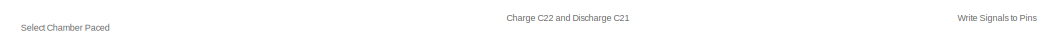
[diagram: root canvas - part 1/3, top center region]
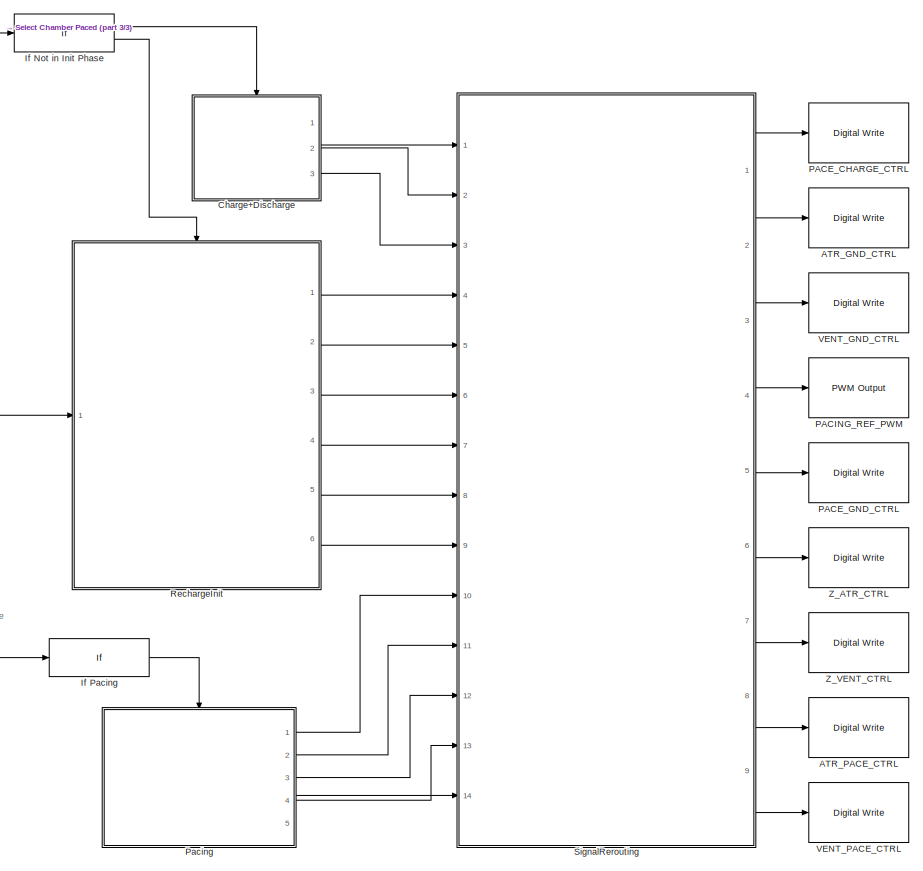
[diagram: root canvas - part 2/3, right side, full height]
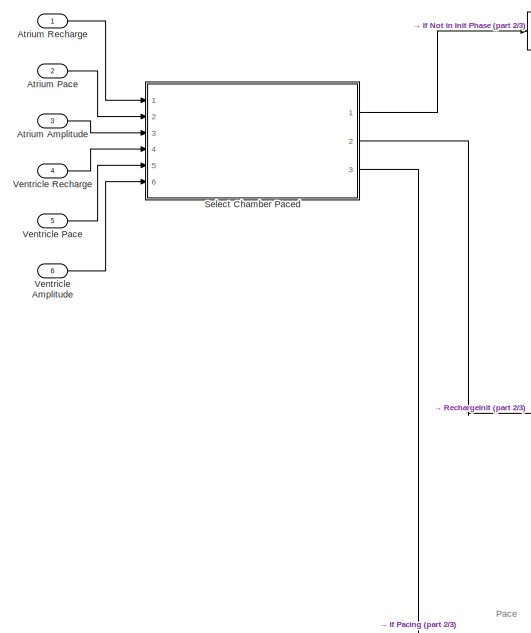
[diagram: root canvas - part 3/3, middle left region]
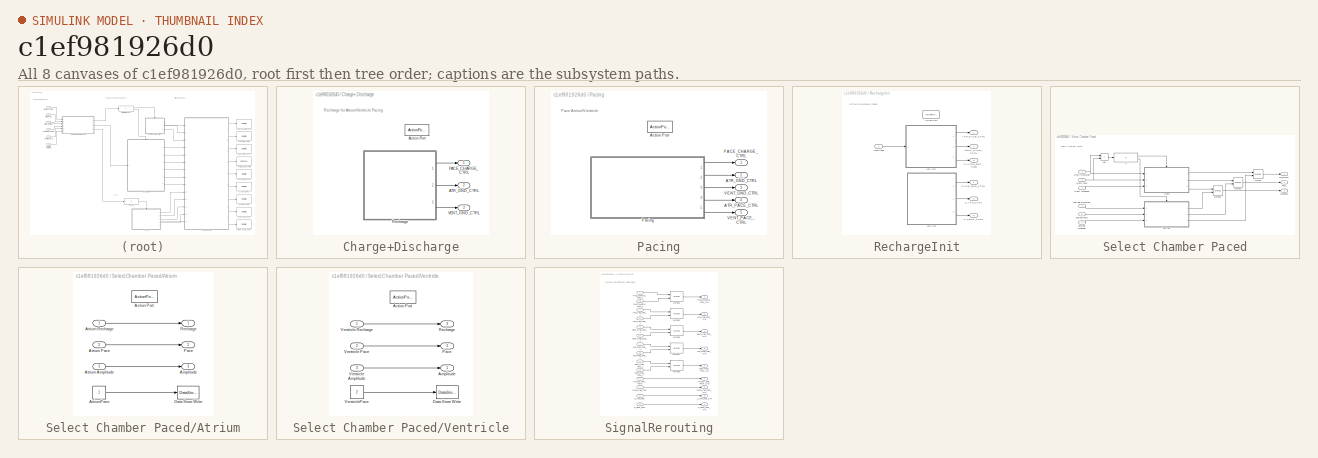
[diagram: thumbnail index - all 8 canvases of the model, root first then tree order]
MODEL slx_c1ef981926d0
KIND model
CONFIG AbsTol = auto
CONFIG EnableMultiTasking = on
CONFIG FixedStep = 1e-3
CONFIG MaxStep = auto
CONFIG MinStep = auto
CONFIG RelTol = 1e-3
CONFIG SampleTimeConstraint = Unconstrained
CONFIG Solver = FixedStepAuto
CONFIG SolverName = FixedStepAuto
CONFIG StartTime = 0.0
CONFIG StopTime = 10.0
BLOCK [Inport]  Atrium Amplitude
  OutDataTypeStr = single
  Port = 3
  Unit = V
BLOCK [Inport]  Ventricle Amplitude
  OutDataTypeStr = single
  Port = 6
  Unit = V
BLOCK [Reference] ATR_GND_CTRL  REF=frdmk64flib/Digital Write
  Ports = [1]
  Priority = 2
  SourceBlock = frdmk64flib/Digital Write
  SourceProductBaseCode = EC_FRDM_K64F
  SourceType = freedomk64f.DigitalWrite
BLOCK [Reference] ATR_PACE_CTRL  REF=frdmk64flib/Digital Write
  Ports = [1]
  Priority = 4
  SourceBlock = frdmk64flib/Digital Write
  SourceProductBaseCode = EC_FRDM_K64F
  SourceType = freedomk64f.DigitalWrite
BLOCK [Inport] Atrium Pace
  OutDataTypeStr = boolean
  Port = 2
BLOCK [Inport] Atrium Recharge
  OutDataTypeStr = double
BLOCK [SubSystem] Charge+Discharge
  Ports = [0, 3, 0, 0, 0, 0, 0, 1]
  RequestExecContextInheritance = off
  TreatAsAtomicUnit = on
BLOCK [Outport] Charge+Discharge/ATR_GND_CTRL
  Port = 2
BLOCK [ActionPort] Charge+Discharge/Action Port
  ActionPortLabel = if(u1==2)
BLOCK [Outport] Charge+Discharge/PACE_CHARGE_CTRL
BLOCK [ModelReference] Charge+Discharge/Recharge
  ModelNameDialog = Recharge.slx
  ModelReferenceVersion = 1.4
  Ports = [0, 3]
BLOCK [Outport] Charge+Discharge/VENT_GND_CTRL
  Port = 3
BLOCK [If] If Not in Init Phase
  ElseIfExpressions = u1
  IfExpression = u1==2
  Ports = [1, 2]
  ShowElse = off
BLOCK [If] If Pacing
  IfExpression = u1
  Ports = [1, 1]
  ShowElse = off
BLOCK [Reference] PACE_CHARGE_CTRL  REF=frdmk64flib/Digital Write
  Ports = [1]
  Priority = 1
  SourceBlock = frdmk64flib/Digital Write
  SourceProductBaseCode = EC_FRDM_K64F
  SourceType = freedomk64f.DigitalWrite
BLOCK [Reference] PACE_GND_CTRL  REF=frdmk64flib/Digital Write
  Ports = [1]
  Priority = 3
  SourceBlock = frdmk64flib/Digital Write
  SourceProductBaseCode = EC_FRDM_K64F
  SourceType = freedomk64f.DigitalWrite
BLOCK [Reference] PACING_REF_PWM  REF=frdmk64flib/PWM Output
  Ports = [1]
  Priority = 3
  SourceBlock = frdmk64flib/PWM Output
  SourceProductBaseCode = EC_FRDM_K64F
  SourceType = freedomk64f.PWMOutput
BLOCK [SubSystem] Pacing
  Ports = [0, 5, 0, 0, 0, 0, 0, 1]
  RequestExecContextInheritance = off
  TreatAsAtomicUnit = on
BLOCK [Outport] Pacing/ATR_GND_CTRL
  Port = 2
BLOCK [Outport] Pacing/ATR_PACE_CTRL
  Port = 4
BLOCK [ActionPort] Pacing/Action Port
  ActionPortLabel = if(u1)
BLOCK [Outport] Pacing/PACE_CHARGE_CTRL
BLOCK [ModelReference] Pacing/Pacing
  ModelNameDialog = Pacing.slx
  ModelReferenceVersion = 1.10
  Ports = [0, 5]
BLOCK [Outport] Pacing/VENT_GND_CTRL
  Port = 3
BLOCK [Outport] Pacing/VENT_PACE_CTRL
  Port = 5
BLOCK [SubSystem] RechargeInit
  Ports = [1, 6, 0, 0, 0, 0, 0, 1]
  RequestExecContextInheritance = off
  TreatAsAtomicUnit = on
BLOCK [Outport] RechargeInit/ATR_PACE_CTRL
BLOCK [ActionPort] RechargeInit/Action Port
  ActionPortLabel = elseif(u1)
BLOCK [Inport] RechargeInit/Amplitude
BLOCK [ModelReference] RechargeInit/Init C21
  ModelNameDialog = InitC21.slx
  ModelReferenceVersion = 1.8
  Ports = [0, 3]
BLOCK [ModelReference] RechargeInit/Init C22
  ModelNameDialog = InitC22.slx
  ModelReferenceVersion = 1.19
  Ports = [1, 3]
BLOCK [Outport] RechargeInit/PACE_GND_CTRL
  Port = 4
BLOCK [Outport] RechargeInit/PACING_REF_PWM
  Port = 3
BLOCK [Outport] RechargeInit/VENT_PACE_CTRL
  Port = 2
BLOCK [Outport] RechargeInit/Z_ATR_CTRL
  Port = 5
BLOCK [Outport] RechargeInit/Z_VENT_CTRL
  Port = 6
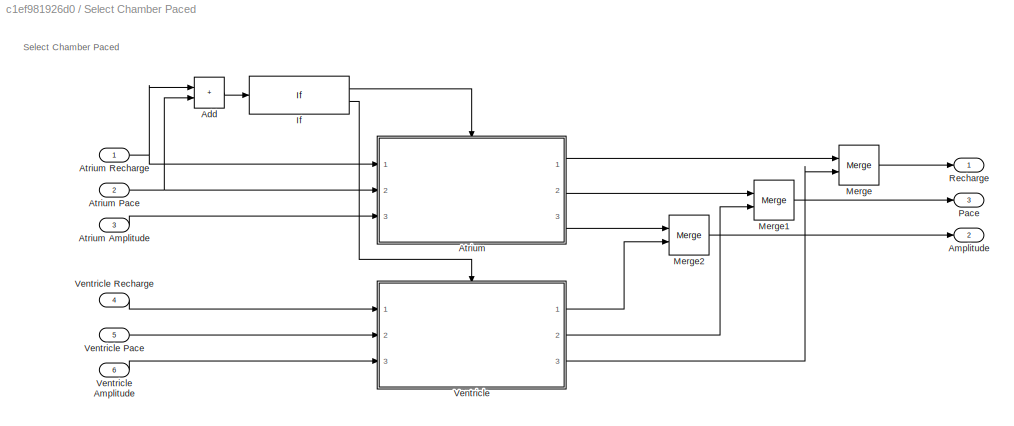
BLOCK [SubSystem] Select Chamber Paced
  Ports = [6, 3]
  RequestExecContextInheritance = off
BLOCK [Inport] Select Chamber Paced/ Atrium Amplitude
  Port = 3
BLOCK [Inport] Select Chamber Paced/ Ventricle Amplitude
  Port = 6
BLOCK [Sum] Select Chamber Paced/Add
  IconShape = rectangular
  Ports = [2, 1]
BLOCK [Outport] Select Chamber Paced/Amplitude
  OutDataTypeStr = single
  Port = 2
BLOCK [SubSystem] Select Chamber Paced/Atrium
  Ports = [3, 3, 0, 0, 0, 0, 0, 1]
  RequestExecContextInheritance = off
  TreatAsAtomicUnit = on
BLOCK [Inport] Select Chamber Paced/Atrium Pace
  Port = 2
BLOCK [Inport] Select Chamber Paced/Atrium Recharge
BLOCK [Inport] Select Chamber Paced/Atrium/ Atrium Amplitude
  Port = 3
  Unit = V
BLOCK [ActionPort] Select Chamber Paced/Atrium/Action Port
  ActionPortLabel = if(u1)
BLOCK [Outport] Select Chamber Paced/Atrium/Amplitude
  Port = 3
BLOCK [Inport] Select Chamber Paced/Atrium/Atrium Pace
  OutDataTypeStr = boolean
  Port = 2
BLOCK [Inport] Select Chamber Paced/Atrium/Atrium Recharge
BLOCK [Constant] Select Chamber Paced/Atrium/AtriumPace
  OutDataTypeStr = uint8
BLOCK [DataStoreWrite] Select Chamber Paced/Atrium/Data Store Write
  DataStoreName = Chamber
  Ports = [1]
BLOCK [Outport] Select Chamber Paced/Atrium/Pace
  Port = 2
BLOCK [Outport] Select Chamber Paced/Atrium/Recharge
BLOCK [If] Select Chamber Paced/If
  IfExpression = u1
  Ports = [1, 2]
BLOCK [Merge] Select Chamber Paced/Merge
  Ports = [2, 1]
BLOCK [Merge] Select Chamber Paced/Merge1
  Ports = [2, 1]
BLOCK [Merge] Select Chamber Paced/Merge2
  Ports = [2, 1]
BLOCK [Outport] Select Chamber Paced/Pace
  Port = 3
BLOCK [Outport] Select Chamber Paced/Recharge
BLOCK [SubSystem] Select Chamber Paced/Ventricle
  Ports = [3, 3, 0, 0, 0, 0, 0, 1]
  RequestExecContextInheritance = off
  TreatAsAtomicUnit = on
BLOCK [Inport] Select Chamber Paced/Ventricle Pace
  Port = 5
BLOCK [Inport] Select Chamber Paced/Ventricle Recharge
  Port = 4
BLOCK [Inport] Select Chamber Paced/Ventricle/ Ventricle Amplitude
  Port = 3
  Unit = V
BLOCK [ActionPort] Select Chamber Paced/Ventricle/Action Port
  ActionPortLabel = else
BLOCK [Outport] Select Chamber Paced/Ventricle/Amplitude
BLOCK [DataStoreWrite] Select Chamber Paced/Ventricle/Data Store Write
  DataStoreName = Chamber
  Ports = [1]
BLOCK [Outport] Select Chamber Paced/Ventricle/Pace
  Port = 2
BLOCK [Outport] Select Chamber Paced/Ventricle/Recharge
  Port = 3
BLOCK [Inport] Select Chamber Paced/Ventricle/Ventricle Pace
  OutDataTypeStr = boolean
  Port = 2
BLOCK [Inport] Select Chamber Paced/Ventricle/Ventricle Recharge
BLOCK [Constant] Select Chamber Paced/Ventricle/VentriclePace
  OutDataTypeStr = uint8
  Value = 2
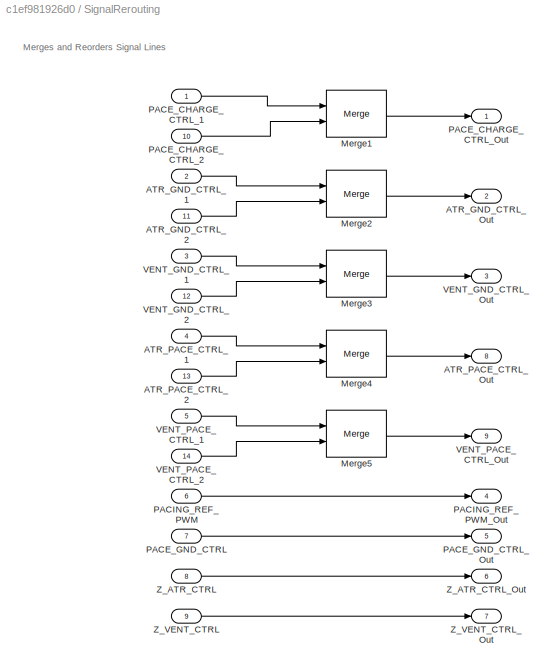
BLOCK [SubSystem] SignalRerouting
  Ports = [14, 9]
  RequestExecContextInheritance = off
BLOCK [Inport] SignalRerouting/ATR_GND_CTRL_1
  Port = 2
BLOCK [Inport] SignalRerouting/ATR_GND_CTRL_2
  Port = 11
BLOCK [Outport] SignalRerouting/ATR_GND_CTRL_Out
  Port = 2
BLOCK [Inport] SignalRerouting/ATR_PACE_CTRL_1
  Port = 4
BLOCK [Inport] SignalRerouting/ATR_PACE_CTRL_2
  Port = 13
BLOCK [Outport] SignalRerouting/ATR_PACE_CTRL_Out
  Port = 8
BLOCK [Merge] SignalRerouting/Merge1
  Ports = [2, 1]
BLOCK [Merge] SignalRerouting/Merge2
  Ports = [2, 1]
BLOCK [Merge] SignalRerouting/Merge3
  Ports = [2, 1]
BLOCK [Merge] SignalRerouting/Merge4
  Ports = [2, 1]
BLOCK [Merge] SignalRerouting/Merge5
  Ports = [2, 1]
BLOCK [Inport] SignalRerouting/PACE_CHARGE_CTRL_1
BLOCK [Inport] SignalRerouting/PACE_CHARGE_CTRL_2
  Port = 10
BLOCK [Outport] SignalRerouting/PACE_CHARGE_CTRL_Out
BLOCK [Inport] SignalRerouting/PACE_GND_CTRL
  Port = 7
BLOCK [Outport] SignalRerouting/PACE_GND_CTRL_Out
  Port = 5
BLOCK [Inport] SignalRerouting/PACING_REF_PWM
  Port = 6
BLOCK [Outport] SignalRerouting/PACING_REF_PWM_Out
  Port = 4
BLOCK [Inport] SignalRerouting/VENT_GND_CTRL_1
  Port = 3
BLOCK [Inport] SignalRerouting/VENT_GND_CTRL_2
  Port = 12
BLOCK [Outport] SignalRerouting/VENT_GND_CTRL_Out
  Port = 3
BLOCK [Inport] SignalRerouting/VENT_PACE_CTRL_1
  Port = 5
BLOCK [Inport] SignalRerouting/VENT_PACE_CTRL_2
  Port = 14
BLOCK [Outport] SignalRerouting/VENT_PACE_CTRL_Out
  Port = 9
BLOCK [Inport] SignalRerouting/Z_ATR_CTRL
  Port = 8
BLOCK [Outport] SignalRerouting/Z_ATR_CTRL_Out
  Port = 6
BLOCK [Inport] SignalRerouting/Z_VENT_CTRL
  Port = 9
BLOCK [Outport] SignalRerouting/Z_VENT_CTRL_Out
  Port = 7
BLOCK [Reference] VENT_GND_CTRL  REF=frdmk64flib/Digital Write
  Ports = [1]
  Priority = 2
  SourceBlock = frdmk64flib/Digital Write
  SourceProductBaseCode = EC_FRDM_K64F
  SourceType = freedomk64f.DigitalWrite
BLOCK [Reference] VENT_PACE_CTRL  REF=frdmk64flib/Digital Write
  Ports = [1]
  Priority = 4
  SourceBlock = frdmk64flib/Digital Write
  SourceProductBaseCode = EC_FRDM_K64F
  SourceType = freedomk64f.DigitalWrite
BLOCK [Inport] Ventricle Pace
  OutDataTypeStr = boolean
  Port = 5
BLOCK [Inport] Ventricle Recharge
  OutDataTypeStr = double
  Port = 4
BLOCK [Reference] Z_ATR_CTRL  REF=frdmk64flib/Digital Write
  Ports = [1]
  Priority = 3
  SourceBlock = frdmk64flib/Digital Write
  SourceProductBaseCode = EC_FRDM_K64F
  SourceType = freedomk64f.DigitalWrite
BLOCK [Reference] Z_VENT_CTRL  REF=frdmk64flib/Digital Write
  Ports = [1]
  Priority = 3
  SourceBlock = frdmk64flib/Digital Write
  SourceProductBaseCode = EC_FRDM_K64F
  SourceType = freedomk64f.DigitalWrite
ANNOTATION (root): Charge C22 and Discharge C21
ANNOTATION (root): Pace
ANNOTATION (root): Select Chamber Paced
ANNOTATION (root): Write Signals to Pins
ANNOTATION Charge+Discharge: Recharge for Atrium/Ventricle Pacing
ANNOTATION Pacing: Pace Atrium/Ventricle
ANNOTATION RechargeInit: Initialize Recharge Phases
ANNOTATION Select Chamber Paced: Select Chamber Paced
ANNOTATION SignalRerouting: Merges and Reorders Signal Lines
LINE  Atrium Amplitude:1 -> Select Chamber Paced:3
LINE  Ventricle Amplitude:1 -> Select Chamber Paced:6
LINE Atrium Pace:1 -> Select Chamber Paced:2
LINE Atrium Recharge:1 -> Select Chamber Paced:1
LINE Charge+Discharge/Recharge:1 -> Charge+Discharge/PACE_CHARGE_CTRL:1
LINE Charge+Discharge/Recharge:2 -> Charge+Discharge/ATR_GND_CTRL:1
LINE Charge+Discharge/Recharge:3 -> Charge+Discharge/VENT_GND_CTRL:1
LINE Charge+Discharge:1 -> SignalRerouting:1
LINE Charge+Discharge:2 -> SignalRerouting:2
LINE Charge+Discharge:3 -> SignalRerouting:3
LINE If Not in Init Phase:1 -> Charge+Discharge:ifaction
LINE If Not in Init Phase:2 -> RechargeInit:ifaction
LINE If Pacing:1 -> Pacing:ifaction
LINE Pacing/Pacing:1 -> Pacing/PACE_CHARGE_CTRL:1
LINE Pacing/Pacing:2 -> Pacing/ATR_GND_CTRL:1
LINE Pacing/Pacing:3 -> Pacing/VENT_GND_CTRL:1
LINE Pacing/Pacing:4 -> Pacing/ATR_PACE_CTRL:1
LINE Pacing/Pacing:5 -> Pacing/VENT_PACE_CTRL:1
LINE Pacing:1 -> SignalRerouting:10
LINE Pacing:2 -> SignalRerouting:11
LINE Pacing:3 -> SignalRerouting:12
LINE Pacing:4 -> SignalRerouting:13
LINE Pacing:5 -> SignalRerouting:14
LINE RechargeInit/Amplitude:1 -> RechargeInit/Init C22:1
LINE RechargeInit/Init C21:1 -> RechargeInit/PACE_GND_CTRL:1
LINE RechargeInit/Init C21:2 -> RechargeInit/Z_ATR_CTRL:1
LINE RechargeInit/Init C21:3 -> RechargeInit/Z_VENT_CTRL:1
LINE RechargeInit/Init C22:1 -> RechargeInit/ATR_PACE_CTRL:1
LINE RechargeInit/Init C22:2 -> RechargeInit/VENT_PACE_CTRL:1
LINE RechargeInit/Init C22:3 -> RechargeInit/PACING_REF_PWM:1
LINE RechargeInit:1 -> SignalRerouting:4
LINE RechargeInit:2 -> SignalRerouting:5
LINE RechargeInit:3 -> SignalRerouting:6
LINE RechargeInit:4 -> SignalRerouting:7
LINE RechargeInit:5 -> SignalRerouting:8
LINE RechargeInit:6 -> SignalRerouting:9
LINE Select Chamber Paced/ Atrium Amplitude:1 -> Select Chamber Paced/Atrium:3
LINE Select Chamber Paced/ Ventricle Amplitude:1 -> Select Chamber Paced/Ventricle:3
LINE Select Chamber Paced/Add:1 -> Select Chamber Paced/If:1
NET Select Chamber Paced/Atrium Pace:1 -> Select Chamber Paced/Add:2, Select Chamber Paced/Atrium:2
NET Select Chamber Paced/Atrium Recharge:1 -> Select Chamber Paced/Add:1, Select Chamber Paced/Atrium:1
LINE Select Chamber Paced/Atrium/ Atrium Amplitude:1 -> Select Chamber Paced/Atrium/Amplitude:1
LINE Select Chamber Paced/Atrium/Atrium Pace:1 -> Select Chamber Paced/Atrium/Pace:1
LINE Select Chamber Paced/Atrium/Atrium Recharge:1 -> Select Chamber Paced/Atrium/Recharge:1
LINE Select Chamber Paced/Atrium/AtriumPace:1 -> Select Chamber Paced/Atrium/Data Store Write:1
LINE Select Chamber Paced/Atrium:1 -> Select Chamber Paced/Merge:1
LINE Select Chamber Paced/Atrium:2 -> Select Chamber Paced/Merge1:1
LINE Select Chamber Paced/Atrium:3 -> Select Chamber Paced/Merge2:1
LINE Select Chamber Paced/If:1 -> Select Chamber Paced/Atrium:ifaction
LINE Select Chamber Paced/If:2 -> Select Chamber Paced/Ventricle:ifaction
LINE Select Chamber Paced/Merge1:1 -> Select Chamber Paced/Pace:1
LINE Select Chamber Paced/Merge2:1 -> Select Chamber Paced/Amplitude:1
LINE Select Chamber Paced/Merge:1 -> Select Chamber Paced/Recharge:1
LINE Select Chamber Paced/Ventricle Pace:1 -> Select Chamber Paced/Ventricle:2
LINE Select Chamber Paced/Ventricle Recharge:1 -> Select Chamber Paced/Ventricle:1
LINE Select Chamber Paced/Ventricle/ Ventricle Amplitude:1 -> Select Chamber Paced/Ventricle/Amplitude:1
LINE Select Chamber Paced/Ventricle/Ventricle Pace:1 -> Select Chamber Paced/Ventricle/Pace:1
LINE Select Chamber Paced/Ventricle/Ventricle Recharge:1 -> Select Chamber Paced/Ventricle/Recharge:1
LINE Select Chamber Paced/Ventricle/VentriclePace:1 -> Select Chamber Paced/Ventricle/Data Store Write:1
LINE Select Chamber Paced/Ventricle:1 -> Select Chamber Paced/Merge2:2
LINE Select Chamber Paced/Ventricle:2 -> Select Chamber Paced/Merge1:2
LINE Select Chamber Paced/Ventricle:3 -> Select Chamber Paced/Merge:2
LINE Select Chamber Paced:1 -> If Not in Init Phase:1
LINE Select Chamber Paced:2 -> RechargeInit:1
LINE Select Chamber Paced:3 -> If Pacing:1
LINE SignalRerouting/ATR_GND_CTRL_1:1 -> SignalRerouting/Merge2:1
LINE SignalRerouting/ATR_GND_CTRL_2:1 -> SignalRerouting/Merge2:2
LINE SignalRerouting/ATR_PACE_CTRL_1:1 -> SignalRerouting/Merge4:1
LINE SignalRerouting/ATR_PACE_CTRL_2:1 -> SignalRerouting/Merge4:2
LINE SignalRerouting/Merge1:1 -> SignalRerouting/PACE_CHARGE_CTRL_Out:1
LINE SignalRerouting/Merge2:1 -> SignalRerouting/ATR_GND_CTRL_Out:1
LINE SignalRerouting/Merge3:1 -> SignalRerouting/VENT_GND_CTRL_Out:1
LINE SignalRerouting/Merge4:1 -> SignalRerouting/ATR_PACE_CTRL_Out:1
LINE SignalRerouting/Merge5:1 -> SignalRerouting/VENT_PACE_CTRL_Out:1
LINE SignalRerouting/PACE_CHARGE_CTRL_1:1 -> SignalRerouting/Merge1:1
LINE SignalRerouting/PACE_CHARGE_CTRL_2:1 -> SignalRerouting/Merge1:2
LINE SignalRerouting/PACE_GND_CTRL:1 -> SignalRerouting/PACE_GND_CTRL_Out:1
LINE SignalRerouting/PACING_REF_PWM:1 -> SignalRerouting/PACING_REF_PWM_Out:1
LINE SignalRerouting/VENT_GND_CTRL_1:1 -> SignalRerouting/Merge3:1
LINE SignalRerouting/VENT_GND_CTRL_2:1 -> SignalRerouting/Merge3:2
LINE SignalRerouting/VENT_PACE_CTRL_1:1 -> SignalRerouting/Merge5:1
LINE SignalRerouting/VENT_PACE_CTRL_2:1 -> SignalRerouting/Merge5:2
LINE SignalRerouting/Z_ATR_CTRL:1 -> SignalRerouting/Z_ATR_CTRL_Out:1
LINE SignalRerouting/Z_VENT_CTRL:1 -> SignalRerouting/Z_VENT_CTRL_Out:1
LINE SignalRerouting:1 -> PACE_CHARGE_CTRL:1
LINE SignalRerouting:2 -> ATR_GND_CTRL:1
LINE SignalRerouting:3 -> VENT_GND_CTRL:1
LINE SignalRerouting:4 -> PACING_REF_PWM:1
LINE SignalRerouting:5 -> PACE_GND_CTRL:1
LINE SignalRerouting:6 -> Z_ATR_CTRL:1
LINE SignalRerouting:7 -> Z_VENT_CTRL:1
LINE SignalRerouting:8 -> ATR_PACE_CTRL:1
LINE SignalRerouting:9 -> VENT_PACE_CTRL:1
LINE Ventricle Pace:1 -> Select Chamber Paced:5
LINE Ventricle Recharge:1 -> Select Chamber Paced:4
note: NET lines group one-source signal fan-out (src -> all destinations, sorted); 1:1 wires keep LINE
